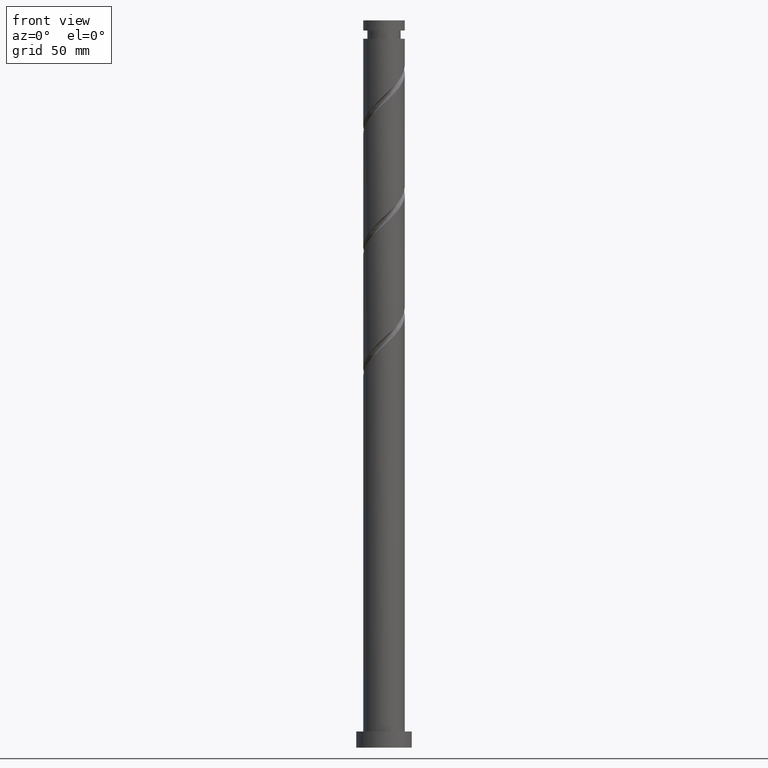
[diagram: clean part render]
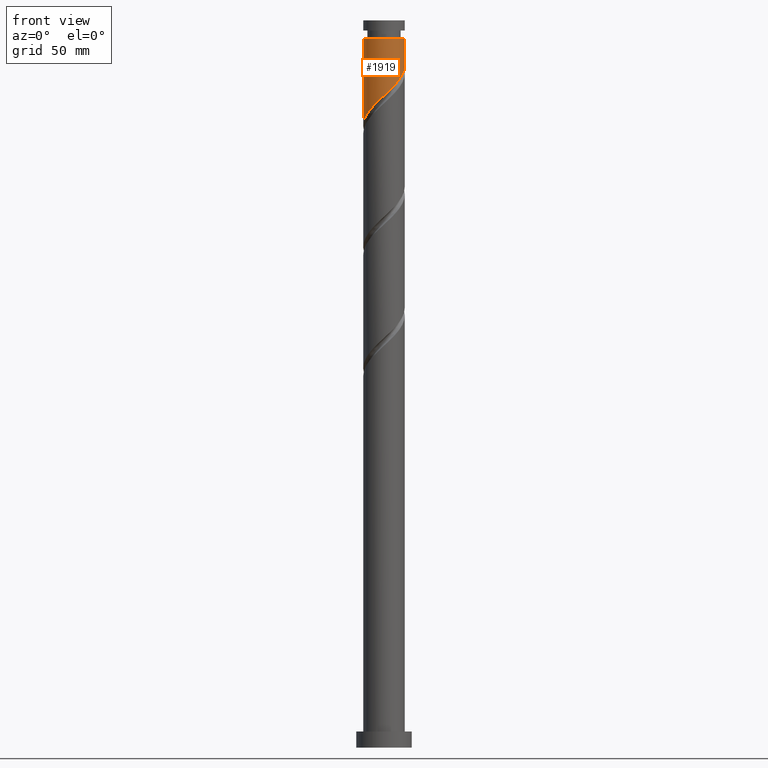
[diagram: same view with one face highlighted and labeled with its STEP entity id]
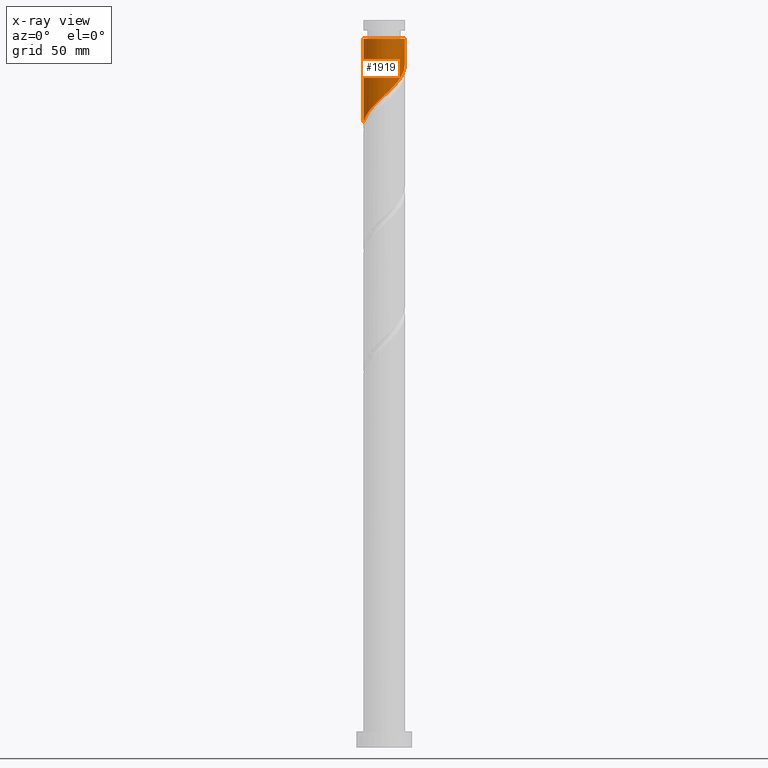
[diagram: x-ray of the same camera — body ghosted, the highlighted face saturated]
A machine part, front view. The second image highlights one B-rep face of the part: STEP entity #1919.
The next image is the same camera in x-ray: the body ghosted, the highlighted face saturated — about 0% of this face is hidden behind the body in this view.
In plain terms, the highlighted cylindrical surface (edge-blend (fillet) strip) has radius 9 mm, axis along (-0, -0, -1).
Its self-contained STEP definition (entity closure, byte-faithful):
#14 = CARTESIAN_POINT ( 'NONE',  ( 7.782463136744671495, -4.632664247218293063, 291.0801627942442451 ) ) ;
#16 = ORIENTED_EDGE ( 'NONE', *, *, #197, .T. ) ;
#36 = CARTESIAN_POINT ( 'NONE',  ( 1.230323642922515059, -8.972993605030055164, 283.5801627942441883 ) ) ;
#112 = CARTESIAN_POINT ( 'NONE',  ( 0.000000000000000000, 0.000000000000000000, 307.0176627942442451 ) ) ;
#139 = EDGE_CURVE ( 'NONE', #1852, #1424, #1147, .T. ) ;
#142 = DIRECTION ( 'NONE',  ( -1.000000000000000000, 0.000000000000000000, 0.000000000000000000 ) ) ;
#154 = CARTESIAN_POINT ( 'NONE',  ( -6.248274648048925961, -6.556475762541449370, 276.0801627942442451 ) ) ;
#175 = CARTESIAN_POINT ( 'NONE',  ( 8.200334224640103642, -3.708708481964597681, 292.0176627942442451 ) ) ;
#197 = EDGE_CURVE ( 'NONE', #1852, #1684, #1560, .T. ) ;
#283 = ORIENTED_EDGE ( 'NONE', *, *, #750, .T. ) ;
#297 = CARTESIAN_POINT ( 'NONE',  ( 5.001719316145855743, -7.550570467503620264, 287.3301627942442451 ) ) ;
#310 = CARTESIAN_POINT ( 'NONE',  ( -8.723621380155604399, -2.213239710400111360, 271.3926627942442451 ) ) ;
#325 = CARTESIAN_POINT ( 'NONE',  ( -8.012409811392387837, -4.098937547011781923, 273.2676627942443019 ) ) ;
#383 = ORIENTED_EDGE ( 'NONE', *, *, #842, .F. ) ;
#488 = CARTESIAN_POINT ( 'NONE',  ( -8.999999999999975131, 0.000000000000000000, 307.0176627942442451 ) ) ;
#510 = CARTESIAN_POINT ( 'NONE',  ( -8.999999999999998224, 2.074682519492169570E-15, 269.3171798721503478 ) ) ;
#586 = CARTESIAN_POINT ( 'NONE',  ( -8.972993605030055164, -1.230323642922515281, 270.4551627942442451 ) ) ;
#615 = CARTESIAN_POINT ( 'NONE',  ( -0.7972020568729413226, -9.021794687464462115, 281.7051627942443019 ) ) ;
#629 = AXIS2_PLACEMENT_3D ( 'NONE', #112, #709, #142 ) ;
#668 = ORIENTED_EDGE ( 'NONE', *, *, #139, .F. ) ;
#709 = DIRECTION ( 'NONE',  ( -0.000000000000000000, -0.000000000000000000, -1.000000000000000000 ) ) ;
#713 = DIRECTION ( 'NONE',  ( -0.000000000000000000, -0.000000000000000000, -1.000000000000000000 ) ) ;
#723 = DIRECTION ( 'NONE',  ( -1.000000000000000000, 0.000000000000000000, 0.000000000000000000 ) ) ;
#732 = CARTESIAN_POINT ( 'NONE',  ( 0.2165607930247870350, -8.997394146247255975, 282.6426627942442451 ) ) ;
#750 = EDGE_CURVE ( 'NONE', #1684, #1453, #1880, .T. ) ;
#777 = CARTESIAN_POINT ( 'NONE',  ( 4.098937547011781035, -8.012409811392387837, 286.3926627942441883 ) ) ;
#791 =( BOUNDED_CURVE ( )  B_SPLINE_CURVE ( 2, ( #1811, #1653, #1080, #1191, #175, #14, #1665, #1778, #1480, #297, #777, #1641, #929, #36, #732, #615, #1213, #1327, #1505, #896, #1494, #154, #1920, #1202, #325, #1027, #310, #586, #907, #1766, #1618 ),
 .UNSPECIFIED., .F., .T. ) 
 B_SPLINE_CURVE_WITH_KNOTS ( ( 3, 2, 2, 2, 2, 2, 2, 2, 2, 2, 2, 2, 2, 2, 2, 3 ),
 ( 0.3045303401299219725, 0.3125000000000000000, 0.3214285714285714524, 0.3303571428571428492, 0.3392857142857143016, 0.3482142857142856984, 0.3571428571428571508, 0.3660714285714285476, 0.3750000000000000000, 0.3839285714285714524, 0.3928571428571428492, 0.4017857142857143016, 0.4107142857142856984, 0.4196428571428571508, 0.4285714285714285476, 0.4295303401299220281 ),
 .UNSPECIFIED. ) 
 CURVE ( )  GEOMETRIC_REPRESENTATION_ITEM ( )  RATIONAL_B_SPLINE_CURVE ( ( 0.9079949616361888687, 0.9039886423360520284, 0.9090909090909186085, 0.9033747362665937031, 0.9090909090909186085, 0.9033747362665937031, 0.9090909090909186085, 0.9033747362665937031, 0.9090909090909186085, 0.9033747362665937031, 0.9090909090909186085, 0.9033747362665937031, 0.9090909090909186085, 0.9033747362665937031, 0.9090909090909186085, 0.9033747362665937031, 0.9090909090909186085, 0.9033747362665937031, 0.9090909090909186085, 0.9033747362665937031, 0.9090909090909186085, 0.9033747362665937031, 0.9090909090909186085, 0.9033747362665937031, 0.9090909090909186085, 0.9033747362665937031, 0.9090909090909186085, 0.9033747362665937031, 0.9090909090909186085, 0.9084770030214603942, 0.9079949616361887577 ) ) 
 REPRESENTATION_ITEM ( '' )  );
#828 = CARTESIAN_POINT ( 'NONE',  ( 8.999999999999994671, -3.358299042343440235E-15, 295.5671798721502910 ) ) ;
#842 = EDGE_CURVE ( 'NONE', #1424, #1453, #791, .T. ) ;
#857 = CARTESIAN_POINT ( 'NONE',  ( 9.000000000000000000, 1.102182119232617714E-15, 315.0000000000000000 ) ) ;
#896 = CARTESIAN_POINT ( 'NONE',  ( -4.632664247218293063, -7.782463136744674159, 277.9551627942442451 ) ) ;
#907 = CARTESIAN_POINT ( 'NONE',  ( -8.997394146247255975, -0.2165607930247874791, 269.5176627942443019 ) ) ;
#929 = CARTESIAN_POINT ( 'NONE',  ( 2.213239710400111360, -8.723621380155604399, 284.5176627942443019 ) ) ;
#992 = CYLINDRICAL_SURFACE ( 'NONE', #1516, 9.000000000000000000 ) ;
#1027 = CARTESIAN_POINT ( 'NONE',  ( -8.474249155281153634, -3.196155777877707660, 272.3301627942442451 ) ) ;
#1080 = CARTESIAN_POINT ( 'NONE',  ( 8.819999999999996732, -1.790977386791921200, 293.8926627942442451 ) ) ;
#1147 = LINE ( 'NONE', #857, #1428 ) ;
#1171 = FACE_OUTER_BOUND ( 'NONE', #1406, .T. ) ;
#1191 = CARTESIAN_POINT ( 'NONE',  ( 8.618205312535531348, -2.784752716710900078, 292.9551627942442451 ) ) ;
#1202 = CARTESIAN_POINT ( 'NONE',  ( -7.550570467503618488, -5.001719316145855743, 274.2051627942442451 ) ) ;
#1213 = CARTESIAN_POINT ( 'NONE',  ( -1.790977386791920090, -8.819999999999996732, 280.7676627942442451 ) ) ;
#1327 = CARTESIAN_POINT ( 'NONE',  ( -2.784752716710899634, -8.618205312535531348, 279.8301627942443019 ) ) ;
#1371 = CARTESIAN_POINT ( 'NONE',  ( 8.999999999999975131, 1.102182119232616136E-15, 307.0176627942442451 ) ) ;
#1406 = EDGE_LOOP ( 'NONE', ( #668, #16, #283, #383 ) ) ;
#1424 = VERTEX_POINT ( 'NONE', #828 ) ;
#1428 = VECTOR ( 'NONE', #1444, 1000.000000000000000 ) ;
#1444 = DIRECTION ( 'NONE',  ( -0.000000000000000000, -0.000000000000000000, -1.000000000000000000 ) ) ;
#1445 = DIRECTION ( 'NONE',  ( -0.000000000000000000, -0.000000000000000000, -1.000000000000000000 ) ) ;
#1453 = VERTEX_POINT ( 'NONE', #510 ) ;
#1458 = CARTESIAN_POINT ( 'NONE',  ( 0.000000000000000000, 0.000000000000000000, 315.0000000000000000 ) ) ;
#1480 = CARTESIAN_POINT ( 'NONE',  ( 5.779097539343652556, -6.899422557776271780, 288.2676627942442451 ) ) ;
#1494 = CARTESIAN_POINT ( 'NONE',  ( -5.440469447633611288, -7.169469449643059988, 277.0176627942442451 ) ) ;
#1505 = CARTESIAN_POINT ( 'NONE',  ( -3.708708481964597237, -8.200334224640103642, 278.8926627942443019 ) ) ;
#1516 = AXIS2_PLACEMENT_3D ( 'NONE', #1458, #713, #723 ) ;
#1560 = CIRCLE ( 'NONE', #629, 8.999999999999975131 ) ;
#1618 = CARTESIAN_POINT ( 'NONE',  ( -8.999999999999998224, 2.074682519492169570E-15, 269.3171798721503478 ) ) ;
#1641 = CARTESIAN_POINT ( 'NONE',  ( 3.196155777877707660, -8.474249155281153634, 285.4551627942443019 ) ) ;
#1653 = CARTESIAN_POINT ( 'NONE',  ( 8.999999999999994671, -0.9045340337332886671, 294.7289087931865765 ) ) ;
#1665 = CARTESIAN_POINT ( 'NONE',  ( 7.169469449643059988, -5.440469447633611288, 290.1426627942443588 ) ) ;
#1684 = VERTEX_POINT ( 'NONE', #488 ) ;
#1692 = VECTOR ( 'NONE', #1445, 1000.000000000000000 ) ;
#1720 = CARTESIAN_POINT ( 'NONE',  ( -9.000000000000000000, 0.000000000000000000, 315.0000000000000000 ) ) ;
#1766 = CARTESIAN_POINT ( 'NONE',  ( -8.999999999999996447, -0.1082960744975113715, 269.4175425603754661 ) ) ;
#1778 = CARTESIAN_POINT ( 'NONE',  ( 6.556475762541449370, -6.248274648048925961, 289.2051627942441883 ) ) ;
#1811 = CARTESIAN_POINT ( 'NONE',  ( 8.999999999999994671, -3.358299042343440235E-15, 295.5671798721502341 ) ) ;
#1852 = VERTEX_POINT ( 'NONE', #1371 ) ;
#1880 = LINE ( 'NONE', #1720, #1692 ) ;
#1919 = ADVANCED_FACE ( 'NONE', ( #1171 ), #992, .T. ) ;
#1920 = CARTESIAN_POINT ( 'NONE',  ( -6.899422557776271780, -5.779097539343652556, 275.1426627942443019 ) ) ;